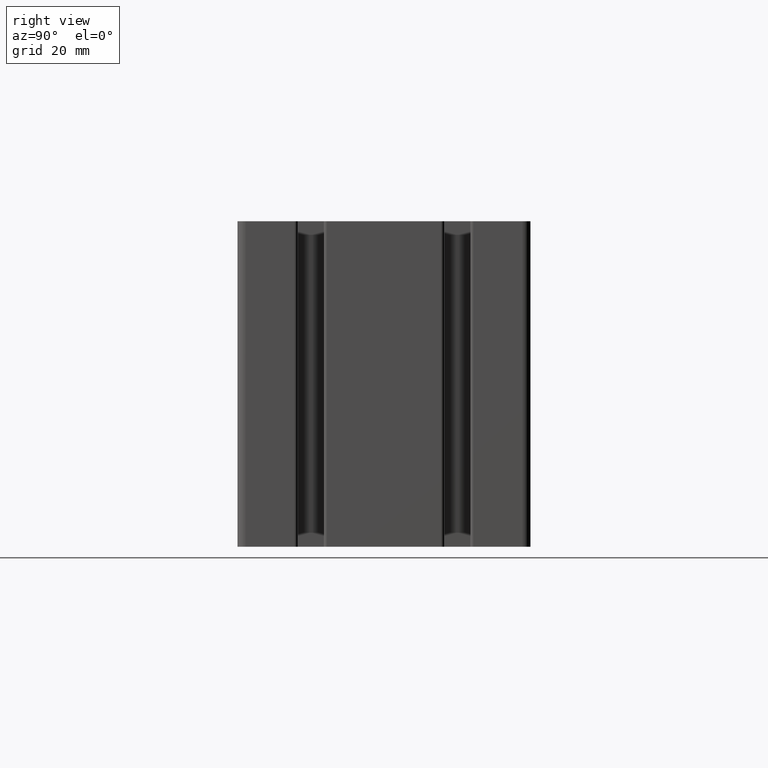
[diagram: clean part render]
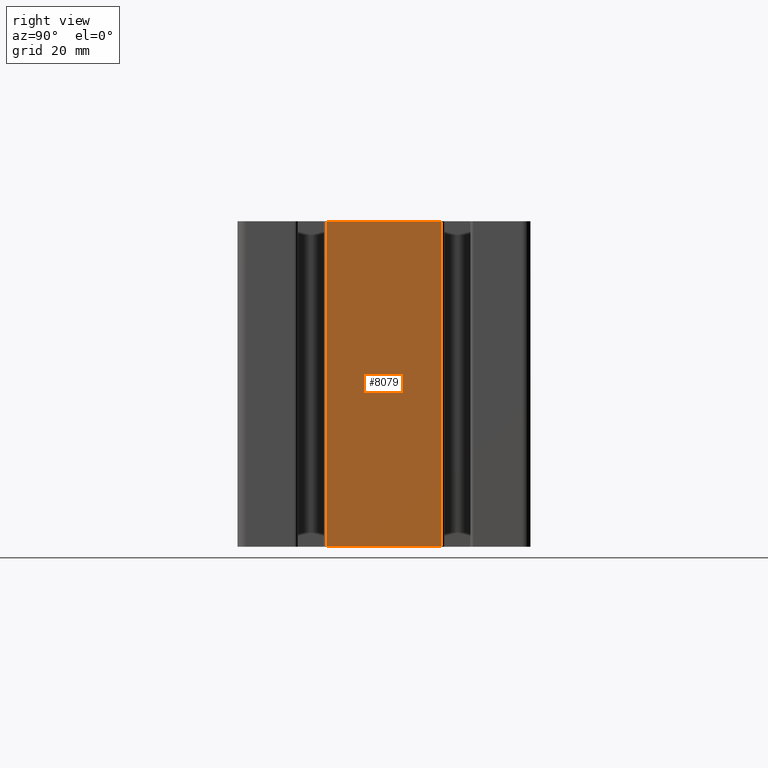
[diagram: same view with one face highlighted and labeled with its STEP entity id]
A machine part, right view. The second image highlights one B-rep face of the part: STEP entity #8079.
In plain terms, the highlighted planar face has unit normal (1, 0, 0).
Its self-contained STEP definition (entity closure, byte-faithful):
#1047=FACE_OUTER_BOUND('',#1476,.T.);
#1476=EDGE_LOOP('',(#7063,#7064,#7065,#7066));
#1940=LINE('',#12588,#2740);
#2010=LINE('',#12801,#2810);
#2291=LINE('',#13637,#3091);
#2297=LINE('',#13658,#3097);
#2740=VECTOR('',#10178,100.);
#2810=VECTOR('',#10392,100.);
#3091=VECTOR('',#11231,35.0000039918979);
#3097=VECTOR('',#11259,35.0000039918979);
#3545=VERTEX_POINT('',#12584);
#3547=VERTEX_POINT('',#12587);
#3617=VERTEX_POINT('',#12797);
#3618=VERTEX_POINT('',#12799);
#4551=EDGE_CURVE('',#3545,#3547,#1940,.T.);
#4658=EDGE_CURVE('',#3617,#3618,#2010,.T.);
#5076=EDGE_CURVE('',#3545,#3617,#2291,.T.);
#5088=EDGE_CURVE('',#3547,#3618,#2297,.T.);
#7063=ORIENTED_EDGE('',*,*,#4551,.F.);
#7064=ORIENTED_EDGE('',*,*,#5076,.T.);
#7065=ORIENTED_EDGE('',*,*,#4658,.T.);
#7066=ORIENTED_EDGE('',*,*,#5088,.F.);
#7678=PLANE('',#8874);
#8079=ADVANCED_FACE('',(#1047),#7678,.T.);
#8874=AXIS2_PLACEMENT_3D('',#13657,#11257,#11258);
#10178=DIRECTION('',(0.,0.,-1.));
#10392=DIRECTION('',(0.,0.,-1.));
#11231=DIRECTION('',(0.,-1.,0.));
#11257=DIRECTION('center_axis',(1.,0.,0.));
#11258=DIRECTION('ref_axis',(0.,1.,0.));
#11259=DIRECTION('',(0.,-1.,0.));
#12584=CARTESIAN_POINT('',(89.9999999999999,17.5000019959487,100.));
#12587=CARTESIAN_POINT('',(89.9999999999999,17.5000019959487,0.));
#12588=CARTESIAN_POINT('',(90.,17.5000019959486,0.));
#12797=CARTESIAN_POINT('',(89.9999999999999,-17.5000019959492,100.));
#12799=CARTESIAN_POINT('',(89.9999999999999,-17.5000019959492,0.));
#12801=CARTESIAN_POINT('',(90.,-17.5000019959492,0.));
#13637=CARTESIAN_POINT('',(90.,-21.25,100.));
#13657=CARTESIAN_POINT('Origin',(90.,-42.5,0.));
#13658=CARTESIAN_POINT('',(90.,-21.25,0.));